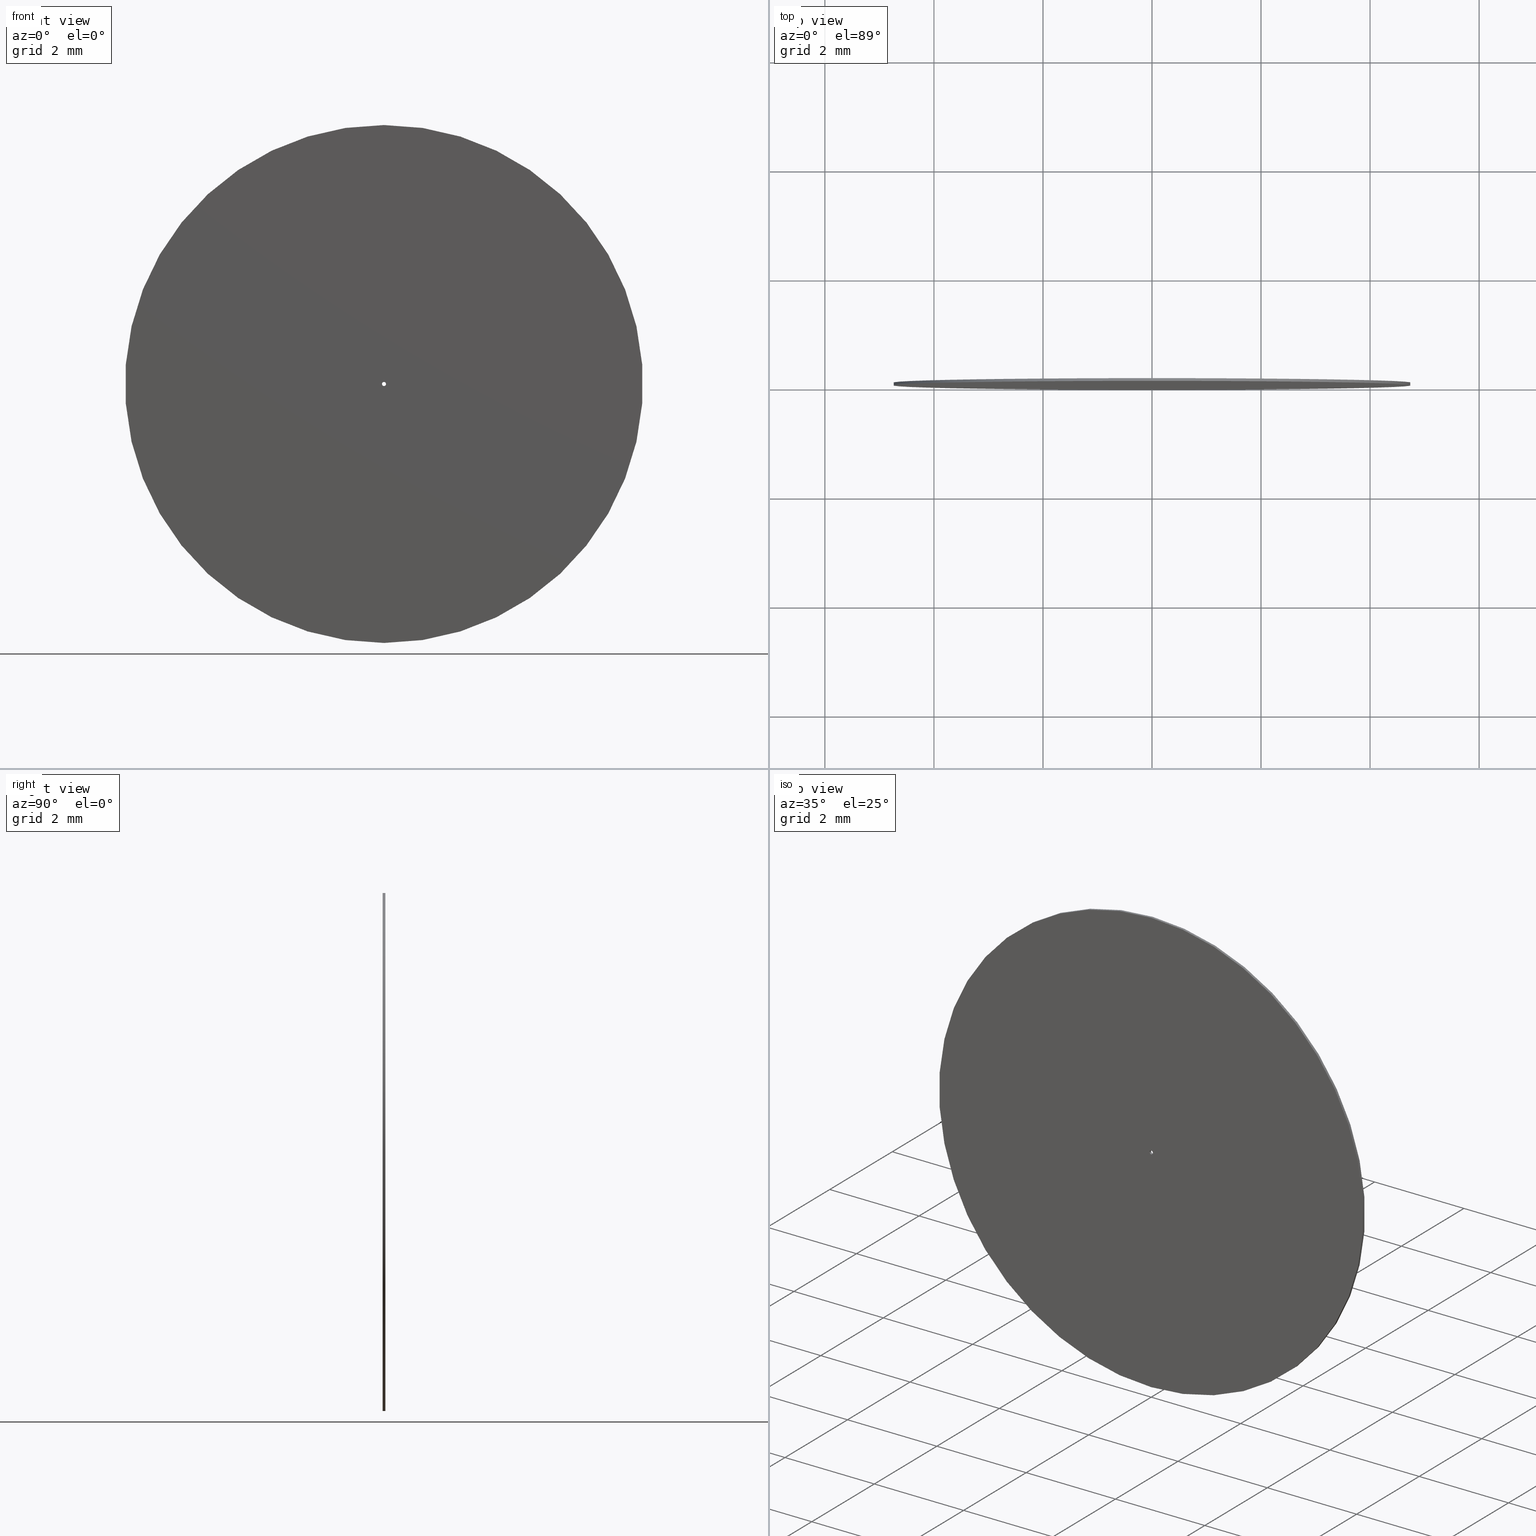
[diagram: canonical four-view strip — front | top / right | iso, engineering-drawing reading convention]
A machine part, canonical four-view strip (front | top / right | iso — engineering-drawing reading convention). The complete STEP part file that produces these views, byte-faithful:
ISO-10303-21;
HEADER;
FILE_DESCRIPTION (( 'STEP AP203' ),
    '1' );
FILE_NAME ('1.5.3.9-ZXO-9.5-75.STEP',
    '2024-05-31T06:06:41',
    ( '' ),
    ( '' ),
    'SwSTEP 2.0',
    'SolidWorks 2021',
    '' );
FILE_SCHEMA (( 'CONFIG_CONTROL_DESIGN' ));
ENDSEC;

DATA;
#1 = VERTEX_POINT ( 'NONE', #80 ) ;
#2 = LOCAL_TIME ( 14, 6, 41.00000000000000000, #148 ) ;
#3 = ORIENTED_EDGE ( 'NONE', *, *, #88, .T. ) ;
#4 = ORIENTED_EDGE ( 'NONE', *, *, #230, .F. ) ;
#5 = CARTESIAN_POINT ( 'NONE',  ( 0.000000000000000000, 0.05000000000000000278, -4.750000000000000000 ) ) ;
#6 = AXIS2_PLACEMENT_3D ( 'NONE', #233, #236, #176 ) ;
#7 = ORIENTED_EDGE ( 'NONE', *, *, #48, .F. ) ;
#8 = CALENDAR_DATE ( 2024, 31, 5 ) ;
#9 = CARTESIAN_POINT ( 'NONE',  ( 0.000000000000000000, 0.000000000000000000, 0.000000000000000000 ) ) ;
#10 = CC_DESIGN_PERSON_AND_ORGANIZATION_ASSIGNMENT ( #249, #149, ( #127 ) ) ;
#11 = APPROVAL_DATE_TIME ( #181, #29 ) ;
#12 = DIRECTION ( 'NONE',  ( 0.000000000000000000, 0.000000000000000000, 1.000000000000000000 ) ) ;
#13 = CIRCLE ( 'NONE', #45, 4.750000000000000000 ) ;
#14 = CARTESIAN_POINT ( 'NONE',  ( 0.000000000000000000, 0.05000000000000000278, 0.000000000000000000 ) ) ;
#15 = LINE ( 'NONE', #67, #18 ) ;
#16 = AXIS2_PLACEMENT_3D ( 'NONE', #199, #24, #19 ) ;
#17 = APPROVAL_DATE_TIME ( #93, #194 ) ;
#18 = VECTOR ( 'NONE', #205, 1000.000000000000000 ) ;
#19 = DIRECTION ( 'NONE',  ( 0.000000000000000000, 0.000000000000000000, -1.000000000000000000 ) ) ;
#20 = VERTEX_POINT ( 'NONE', #99 ) ;
#21 = LOCAL_TIME ( 14, 6, 41.00000000000000000, #231 ) ;
#22 = ORIENTED_EDGE ( 'NONE', *, *, #88, .F. ) ;
#23 = LINE ( 'NONE', #5, #31 ) ;
#24 = DIRECTION ( 'NONE',  ( -0.000000000000000000, -1.000000000000000000, -0.000000000000000000 ) ) ;
#25 = CIRCLE ( 'NONE', #241, 4.750000000000000000 ) ;
#26 = CARTESIAN_POINT ( 'NONE',  ( 0.000000000000000000, 0.05000000000000000278, 0.000000000000000000 ) ) ;
#27 =( NAMED_UNIT ( * ) PLANE_ANGLE_UNIT ( ) SI_UNIT ( $, .RADIAN. ) );
#28 = APPLICATION_PROTOCOL_DEFINITION ( 'international standard', 'config_control_design', 1994, #229 ) ;
#29 = APPROVAL ( #49, 'δָ��' ) ;
#30 = DIRECTION ( 'NONE',  ( -0.000000000000000000, -1.000000000000000000, -0.000000000000000000 ) ) ;
#31 = VECTOR ( 'NONE', #113, 1000.000000000000000 ) ;
#32 = PRODUCT_DEFINITION_FORMATION_WITH_SPECIFIED_SOURCE ( '�κ�', '', #170, .NOT_KNOWN. ) ;
#33 = CC_DESIGN_DATE_AND_TIME_ASSIGNMENT ( #225, #206, ( #127 ) ) ;
#34 = PERSON_AND_ORGANIZATION ( #71, #73 ) ;
#35 = UNCERTAINTY_MEASURE_WITH_UNIT (LENGTH_MEASURE( 1.000000000000000082E-05 ), #160, 'distance_accuracy_value', 'NONE');
#36 = COORDINATED_UNIVERSAL_TIME_OFFSET ( 8, 0, .AHEAD. ) ;
#37 = COORDINATED_UNIVERSAL_TIME_OFFSET ( 8, 0, .AHEAD. ) ;
#38 = AXIS2_PLACEMENT_3D ( 'NONE', #139, #83, #123 ) ;
#39 = ORIENTED_EDGE ( 'NONE', *, *, #175, .F. ) ;
#40 = CARTESIAN_POINT ( 'NONE',  ( 5.817072295949927426E-16, 0.05000000000000000278, 4.750000000000000000 ) ) ;
#41 = CARTESIAN_POINT ( 'NONE',  ( 0.000000000000000000, 0.000000000000000000, 0.000000000000000000 ) ) ;
#42 = ORIENTED_EDGE ( 'NONE', *, *, #53, .T. ) ;
#43 = ORIENTED_EDGE ( 'NONE', *, *, #103, .T. ) ;
#44 = DIRECTION ( 'NONE',  ( -0.000000000000000000, -1.000000000000000000, -0.000000000000000000 ) ) ;
#45 = AXIS2_PLACEMENT_3D ( 'NONE', #142, #202, #201 ) ;
#46 = DIRECTION ( 'NONE',  ( 0.000000000000000000, 1.000000000000000000, 0.000000000000000000 ) ) ;
#47 = CARTESIAN_POINT ( 'NONE',  ( 0.000000000000000000, 0.05000000000000000278, 0.000000000000000000 ) ) ;
#48 = EDGE_CURVE ( 'NONE', #20, #212, #23, .T. ) ;
#49 = APPROVAL_STATUS ( 'not_yet_approved' ) ;
#50 = FACE_BOUND ( 'NONE', #247, .T. ) ;
#51 = PERSON_AND_ORGANIZATION ( #71, #73 ) ;
#52 = PERSON_AND_ORGANIZATION_ROLE ( 'design_owner' ) ;
#53 = EDGE_CURVE ( 'NONE', #78, #117, #141, .T. ) ;
#54 = CC_DESIGN_APPROVAL ( #29, ( #127 ) ) ;
#55 = DATE_AND_TIME ( #209, #2 ) ;
#56 = ORIENTED_EDGE ( 'NONE', *, *, #103, .F. ) ;
#57 = CIRCLE ( 'NONE', #77, 0.03749999999999999861 ) ;
#58 = ORIENTED_EDGE ( 'NONE', *, *, #245, .T. ) ;
#59 = DIRECTION ( 'NONE',  ( 0.000000000000000000, 0.000000000000000000, -1.000000000000000000 ) ) ;
#60 = CYLINDRICAL_SURFACE ( 'NONE', #16, 0.03749999999999999861 ) ;
#61 = AXIS2_PLACEMENT_3D ( 'NONE', #219, #121, #182 ) ;
#62 = CARTESIAN_POINT ( 'NONE',  ( 0.000000000000000000, 0.05000000000000000278, -0.03749999999999999861 ) ) ;
#63 = MANIFOLD_SOLID_BREP ( '͹̨-����1', #174 ) ;
#64 = DIRECTION ( 'NONE',  ( 0.000000000000000000, 1.000000000000000000, 0.000000000000000000 ) ) ;
#65 = LOCAL_TIME ( 14, 6, 41.00000000000000000, #37 ) ;
#66 = CARTESIAN_POINT ( 'NONE',  ( 0.000000000000000000, 0.000000000000000000, -4.750000000000000000 ) ) ;
#67 = CARTESIAN_POINT ( 'NONE',  ( 4.592425496802573602E-18, 0.05000000000000000278, 0.03749999999999999861 ) ) ;
#68 = APPROVAL_ROLE ( '' ) ;
#69 = CALENDAR_DATE ( 2024, 31, 5 ) ;
#70 = AXIS2_PLACEMENT_3D ( 'NONE', #223, #44, #244 ) ;
#71 = PERSON ( 'δָ��', 'δָ��', 'δָ��', ('δָ��'), ('δָ��'), ('δָ��') ) ;
#72 = PERSON_AND_ORGANIZATION ( #71, #73 ) ;
#73 = ORGANIZATION ( 'δָ��', 'δָ��', '' ) ;
#74 = CALENDAR_DATE ( 2024, 31, 5 ) ;
#75 = EDGE_CURVE ( 'NONE', #100, #91, #214, .T. ) ;
#76 = EDGE_LOOP ( 'NONE', ( #128, #58 ) ) ;
#77 = AXIS2_PLACEMENT_3D ( 'NONE', #120, #86, #224 ) ;
#78 = VERTEX_POINT ( 'NONE', #82 ) ;
#79 = DIRECTION ( 'NONE',  ( 0.000000000000000000, 0.000000000000000000, 1.000000000000000000 ) ) ;
#80 = CARTESIAN_POINT ( 'NONE',  ( 4.592425496802573602E-18, 0.05000000000000000278, 0.03749999999999999861 ) ) ;
#81 = VECTOR ( 'NONE', #30, 1000.000000000000000 ) ;
#82 = CARTESIAN_POINT ( 'NONE',  ( 0.000000000000000000, 0.000000000000000000, -0.03749999999999999861 ) ) ;
#83 = DIRECTION ( 'NONE',  ( 0.000000000000000000, 1.000000000000000000, 0.000000000000000000 ) ) ;
#84 = CC_DESIGN_PERSON_AND_ORGANIZATION_ASSIGNMENT ( #146, #246, ( #32 ) ) ;
#85 = DIRECTION ( 'NONE',  ( 0.000000000000000000, -0.000000000000000000, 1.000000000000000000 ) ) ;
#86 = DIRECTION ( 'NONE',  ( 0.000000000000000000, 1.000000000000000000, 0.000000000000000000 ) ) ;
#87 = DIRECTION ( 'NONE',  ( 0.000000000000000000, 1.000000000000000000, 0.000000000000000000 ) ) ;
#88 = EDGE_CURVE ( 'NONE', #94, #1, #102, .T. ) ;
#89 = APPROVAL_ROLE ( '' ) ;
#90 = AXIS2_PLACEMENT_3D ( 'NONE', #158, #161, #85 ) ;
#91 = VERTEX_POINT ( 'NONE', #235 ) ;
#92 = ORIENTED_EDGE ( 'NONE', *, *, #75, .T. ) ;
#93 = DATE_AND_TIME ( #74, #65 ) ;
#94 = VERTEX_POINT ( 'NONE', #62 ) ;
#95 = FACE_OUTER_BOUND ( 'NONE', #173, .T. ) ;
#96 = ADVANCED_FACE ( 'NONE', ( #112 ), #132, .T. ) ;
#97 = DIRECTION ( 'NONE',  ( 0.000000000000000000, 1.000000000000000000, 0.000000000000000000 ) ) ;
#98 = LOCAL_TIME ( 14, 6, 41.00000000000000000, #36 ) ;
#99 = CARTESIAN_POINT ( 'NONE',  ( 0.000000000000000000, 0.05000000000000000278, -4.750000000000000000 ) ) ;
#100 = VERTEX_POINT ( 'NONE', #138 ) ;
#101 = EDGE_LOOP ( 'NONE', ( #135, #92, #43, #7 ) ) ;
#102 = CIRCLE ( 'NONE', #227, 0.03749999999999999861 ) ;
#103 = EDGE_CURVE ( 'NONE', #91, #212, #25, .T. ) ;
#104 = FACE_OUTER_BOUND ( 'NONE', #76, .T. ) ;
#105 = DIRECTION ( 'NONE',  ( 1.000000000000000000, 0.000000000000000000, 0.000000000000000000 ) ) ;
#106 = DIRECTION ( 'NONE',  ( 0.000000000000000000, -0.000000000000000000, 1.000000000000000000 ) ) ;
#107 = ORIENTED_EDGE ( 'NONE', *, *, #175, .T. ) ;
#108 = APPROVAL_ROLE ( '' ) ;
#109 = AXIS2_PLACEMENT_3D ( 'NONE', #192, #234, #59 ) ;
#110 = DATE_AND_TIME ( #69, #98 ) ;
#111 = PERSON_AND_ORGANIZATION_ROLE ( 'creator' ) ;
#112 = FACE_OUTER_BOUND ( 'NONE', #101, .T. ) ;
#113 = DIRECTION ( 'NONE',  ( -0.000000000000000000, -1.000000000000000000, -0.000000000000000000 ) ) ;
#114 = DIRECTION ( 'NONE',  ( 0.000000000000000000, 1.000000000000000000, 0.000000000000000000 ) ) ;
#115 = ORIENTED_EDGE ( 'NONE', *, *, #53, .F. ) ;
#116 = PRODUCT_DEFINITION ( 'δ֪', '', #32, #188 ) ;
#117 = VERTEX_POINT ( 'NONE', #216 ) ;
#118 = FACE_BOUND ( 'NONE', #136, .T. ) ;
#119 = CC_DESIGN_DATE_AND_TIME_ASSIGNMENT ( #55, #228, ( #116 ) ) ;
#120 = CARTESIAN_POINT ( 'NONE',  ( 0.000000000000000000, 0.000000000000000000, 0.000000000000000000 ) ) ;
#121 = DIRECTION ( 'NONE',  ( -0.000000000000000000, -1.000000000000000000, -0.000000000000000000 ) ) ;
#122 = APPROVAL ( #131, 'δָ��' ) ;
#123 = DIRECTION ( 'NONE',  ( 0.000000000000000000, 0.000000000000000000, 1.000000000000000000 ) ) ;
#124 = PERSON_AND_ORGANIZATION ( #71, #73 ) ;
#125 = PERSON_AND_ORGANIZATION ( #71, #73 ) ;
#126 = APPROVAL_STATUS ( 'not_yet_approved' ) ;
#127 = SECURITY_CLASSIFICATION ( '', '', #211 ) ;
#128 = ORIENTED_EDGE ( 'NONE', *, *, #198, .T. ) ;
#129 = ADVANCED_FACE ( 'NONE', ( #154 ), #60, .F. ) ;
#130 = APPROVAL_DATE_TIME ( #110, #122 ) ;
#131 = APPROVAL_STATUS ( 'not_yet_approved' ) ;
#132 = CYLINDRICAL_SURFACE ( 'NONE', #109, 4.750000000000000000 ) ;
#133 = CC_DESIGN_APPROVAL ( #194, ( #116 ) ) ;
#134 = DIRECTION ( 'NONE',  ( -0.000000000000000000, -1.000000000000000000, -0.000000000000000000 ) ) ;
#135 = ORIENTED_EDGE ( 'NONE', *, *, #245, .F. ) ;
#136 = EDGE_LOOP ( 'NONE', ( #42, #177 ) ) ;
#137 = ADVANCED_FACE ( 'NONE', ( #95, #118 ), #183, .F. ) ;
#138 = CARTESIAN_POINT ( 'NONE',  ( 5.817072295949927426E-16, 0.05000000000000000278, 4.750000000000000000 ) ) ;
#139 = CARTESIAN_POINT ( 'NONE',  ( 0.000000000000000000, 0.000000000000000000, 0.000000000000000000 ) ) ;
#140 = DIRECTION ( 'NONE',  ( 0.000000000000000000, 0.000000000000000000, 1.000000000000000000 ) ) ;
#141 = CIRCLE ( 'NONE', #6, 0.03749999999999999861 ) ;
#142 = CARTESIAN_POINT ( 'NONE',  ( 0.000000000000000000, 0.05000000000000000278, 0.000000000000000000 ) ) ;
#143 =( NAMED_UNIT ( * ) SI_UNIT ( $, .STERADIAN. ) SOLID_ANGLE_UNIT ( ) );
#144 = PRODUCT_DEFINITION_SHAPE ( 'NONE', 'NONE',  #116 ) ;
#145 = CIRCLE ( 'NONE', #38, 4.750000000000000000 ) ;
#146 = PERSON_AND_ORGANIZATION ( #71, #73 ) ;
#147 = ADVANCED_FACE ( 'NONE', ( #104, #50 ), #221, .T. ) ;
#148 = COORDINATED_UNIVERSAL_TIME_OFFSET ( 8, 0, .AHEAD. ) ;
#149 = PERSON_AND_ORGANIZATION_ROLE ( 'classification_officer' ) ;
#150 = CC_DESIGN_PERSON_AND_ORGANIZATION_ASSIGNMENT ( #124, #52, ( #170 ) ) ;
#151 = ORIENTED_EDGE ( 'NONE', *, *, #179, .F. ) ;
#152 = AXIS2_PLACEMENT_3D ( 'NONE', #47, #46, #106 ) ;
#153 = DIRECTION ( 'NONE',  ( 0.000000000000000000, 0.000000000000000000, 1.000000000000000000 ) ) ;
#154 = FACE_OUTER_BOUND ( 'NONE', #155, .T. ) ;
#155 = EDGE_LOOP ( 'NONE', ( #157, #171, #107, #4 ) ) ;
#156 = CC_DESIGN_SECURITY_CLASSIFICATION ( #127, ( #32 ) ) ;
#157 = ORIENTED_EDGE ( 'NONE', *, *, #169, .F. ) ;
#158 = CARTESIAN_POINT ( 'NONE',  ( 0.000000000000000000, 0.000000000000000000, 0.000000000000000000 ) ) ;
#159 = APPROVAL_PERSON_ORGANIZATION ( #51, #29, #68 ) ;
#160 =( LENGTH_UNIT ( ) NAMED_UNIT ( * ) SI_UNIT ( .MILLI., .METRE. ) );
#161 = DIRECTION ( 'NONE',  ( 0.000000000000000000, 1.000000000000000000, 0.000000000000000000 ) ) ;
#162 = EDGE_CURVE ( 'NONE', #212, #91, #145, .T. ) ;
#163 = PERSON_AND_ORGANIZATION ( #71, #73 ) ;
#164 = ORIENTED_EDGE ( 'NONE', *, *, #75, .F. ) ;
#165 = ORIENTED_EDGE ( 'NONE', *, *, #48, .T. ) ;
#166 = APPLICATION_PROTOCOL_DEFINITION ( 'international standard', 'config_control_design', 1994, #243 ) ;
#167 = PERSON_AND_ORGANIZATION_ROLE ( 'creator' ) ;
#168 = AXIS2_PLACEMENT_3D ( 'NONE', #26, #87, #238 ) ;
#169 = EDGE_CURVE ( 'NONE', #1, #117, #15, .T. ) ;
#170 = PRODUCT ( '1.5.3.9-ZXO-9.5-75', '1.5.3.9-ZXO-9.5-75', '', ( #226 ) ) ;
#171 = ORIENTED_EDGE ( 'NONE', *, *, #179, .T. ) ;
#172 = AXIS2_PLACEMENT_3D ( 'NONE', #14, #64, #12 ) ;
#173 = EDGE_LOOP ( 'NONE', ( #193, #56 ) ) ;
#174 = CLOSED_SHELL ( 'NONE', ( #239, #96, #147, #137, #186, #129 ) ) ;
#175 = EDGE_CURVE ( 'NONE', #94, #78, #240, .T. ) ;
#176 = DIRECTION ( 'NONE',  ( 0.000000000000000000, 0.000000000000000000, 1.000000000000000000 ) ) ;
#177 = ORIENTED_EDGE ( 'NONE', *, *, #230, .T. ) ;
#178 = EDGE_LOOP ( 'NONE', ( #3, #197, #115, #39 ) ) ;
#179 = EDGE_CURVE ( 'NONE', #1, #94, #190, .T. ) ;
#180 = CYLINDRICAL_SURFACE ( 'NONE', #61, 4.750000000000000000 ) ;
#181 = DATE_AND_TIME ( #8, #248 ) ;
#182 = DIRECTION ( 'NONE',  ( 0.000000000000000000, 0.000000000000000000, -1.000000000000000000 ) ) ;
#183 = PLANE ( 'NONE',  #90 ) ;
#184 = CARTESIAN_POINT ( 'NONE',  ( 0.000000000000000000, 0.05000000000000000278, -0.03749999999999999861 ) ) ;
#185 = ORIENTED_EDGE ( 'NONE', *, *, #198, .F. ) ;
#186 = ADVANCED_FACE ( 'NONE', ( #242 ), #180, .T. ) ;
#187 =( GEOMETRIC_REPRESENTATION_CONTEXT ( 3 ) GLOBAL_UNCERTAINTY_ASSIGNED_CONTEXT ( ( #35 ) ) GLOBAL_UNIT_ASSIGNED_CONTEXT ( ( #160, #27, #143 ) ) REPRESENTATION_CONTEXT ( 'NONE', 'WORKASPACE' ) );
#188 = DESIGN_CONTEXT ( 'detailed design', #243, 'design' ) ;
#189 = CALENDAR_DATE ( 2024, 31, 5 ) ;
#190 = CIRCLE ( 'NONE', #168, 0.03749999999999999861 ) ;
#191 = CC_DESIGN_PERSON_AND_ORGANIZATION_ASSIGNMENT ( #163, #111, ( #32 ) ) ;
#192 = CARTESIAN_POINT ( 'NONE',  ( 0.000000000000000000, 0.05000000000000000278, 0.000000000000000000 ) ) ;
#193 = ORIENTED_EDGE ( 'NONE', *, *, #162, .F. ) ;
#194 = APPROVAL ( #126, 'δָ��' ) ;
#195 = APPROVAL_PERSON_ORGANIZATION ( #72, #194, #89 ) ;
#196 = EDGE_LOOP ( 'NONE', ( #164, #185, #165, #215 ) ) ;
#197 = ORIENTED_EDGE ( 'NONE', *, *, #169, .T. ) ;
#198 = EDGE_CURVE ( 'NONE', #20, #100, #200, .T. ) ;
#199 = CARTESIAN_POINT ( 'NONE',  ( 0.000000000000000000, 0.05000000000000000278, 0.000000000000000000 ) ) ;
#200 = CIRCLE ( 'NONE', #172, 4.750000000000000000 ) ;
#201 = DIRECTION ( 'NONE',  ( 0.000000000000000000, 0.000000000000000000, 1.000000000000000000 ) ) ;
#202 = DIRECTION ( 'NONE',  ( 0.000000000000000000, 1.000000000000000000, 0.000000000000000000 ) ) ;
#203 = CYLINDRICAL_SURFACE ( 'NONE', #70, 0.03749999999999999861 ) ;
#204 = CC_DESIGN_APPROVAL ( #122, ( #32 ) ) ;
#205 = DIRECTION ( 'NONE',  ( -0.000000000000000000, -1.000000000000000000, -0.000000000000000000 ) ) ;
#206 = DATE_TIME_ROLE ( 'classification_date' ) ;
#207 = CC_DESIGN_PERSON_AND_ORGANIZATION_ASSIGNMENT ( #125, #167, ( #116 ) ) ;
#208 = ADVANCED_BREP_SHAPE_REPRESENTATION ( '1.5.3.9-ZXO-9.5-75', ( #63, #220 ), #187 ) ;
#209 = CALENDAR_DATE ( 2024, 31, 5 ) ;
#210 = APPROVAL_PERSON_ORGANIZATION ( #34, #122, #108 ) ;
#211 = SECURITY_CLASSIFICATION_LEVEL ( 'unclassified' ) ;
#212 = VERTEX_POINT ( 'NONE', #66 ) ;
#213 = CARTESIAN_POINT ( 'NONE',  ( 0.000000000000000000, 0.05000000000000000278, 0.000000000000000000 ) ) ;
#214 = LINE ( 'NONE', #40, #232 ) ;
#215 = ORIENTED_EDGE ( 'NONE', *, *, #162, .T. ) ;
#216 = CARTESIAN_POINT ( 'NONE',  ( 4.592425496802573602E-18, 0.000000000000000000, 0.03749999999999999861 ) ) ;
#217 = FACE_OUTER_BOUND ( 'NONE', #178, .T. ) ;
#218 = COORDINATED_UNIVERSAL_TIME_OFFSET ( 8, 0, .AHEAD. ) ;
#219 = CARTESIAN_POINT ( 'NONE',  ( 0.000000000000000000, 0.05000000000000000278, 0.000000000000000000 ) ) ;
#220 = AXIS2_PLACEMENT_3D ( 'NONE', #9, #140, #105 ) ;
#221 = PLANE ( 'NONE',  #152 ) ;
#222 = SHAPE_DEFINITION_REPRESENTATION ( #144, #208 ) ;
#223 = CARTESIAN_POINT ( 'NONE',  ( 0.000000000000000000, 0.05000000000000000278, 0.000000000000000000 ) ) ;
#224 = DIRECTION ( 'NONE',  ( 0.000000000000000000, 0.000000000000000000, 1.000000000000000000 ) ) ;
#225 = DATE_AND_TIME ( #189, #21 ) ;
#226 = MECHANICAL_CONTEXT ( 'NONE', #229, 'mechanical' ) ;
#227 = AXIS2_PLACEMENT_3D ( 'NONE', #213, #97, #153 ) ;
#228 = DATE_TIME_ROLE ( 'creation_date' ) ;
#229 = APPLICATION_CONTEXT ( 'configuration controlled 3d designs of mechanical parts and assemblies' ) ;
#230 = EDGE_CURVE ( 'NONE', #117, #78, #57, .T. ) ;
#231 = COORDINATED_UNIVERSAL_TIME_OFFSET ( 8, 0, .AHEAD. ) ;
#232 = VECTOR ( 'NONE', #134, 1000.000000000000000 ) ;
#233 = CARTESIAN_POINT ( 'NONE',  ( 0.000000000000000000, 0.000000000000000000, 0.000000000000000000 ) ) ;
#234 = DIRECTION ( 'NONE',  ( -0.000000000000000000, -1.000000000000000000, -0.000000000000000000 ) ) ;
#235 = CARTESIAN_POINT ( 'NONE',  ( 5.817072295949927426E-16, 0.000000000000000000, 4.750000000000000000 ) ) ;
#236 = DIRECTION ( 'NONE',  ( 0.000000000000000000, 1.000000000000000000, 0.000000000000000000 ) ) ;
#237 = PRODUCT_RELATED_PRODUCT_CATEGORY ( 'detail', '', ( #170 ) ) ;
#238 = DIRECTION ( 'NONE',  ( 0.000000000000000000, 0.000000000000000000, 1.000000000000000000 ) ) ;
#239 = ADVANCED_FACE ( 'NONE', ( #217 ), #203, .F. ) ;
#240 = LINE ( 'NONE', #184, #81 ) ;
#241 = AXIS2_PLACEMENT_3D ( 'NONE', #41, #114, #79 ) ;
#242 = FACE_OUTER_BOUND ( 'NONE', #196, .T. ) ;
#243 = APPLICATION_CONTEXT ( 'configuration controlled 3d designs of mechanical parts and assemblies' ) ;
#244 = DIRECTION ( 'NONE',  ( 0.000000000000000000, 0.000000000000000000, -1.000000000000000000 ) ) ;
#245 = EDGE_CURVE ( 'NONE', #100, #20, #13, .T. ) ;
#246 = PERSON_AND_ORGANIZATION_ROLE ( 'design_supplier' ) ;
#247 = EDGE_LOOP ( 'NONE', ( #22, #151 ) ) ;
#248 = LOCAL_TIME ( 14, 6, 41.00000000000000000, #218 ) ;
#249 = PERSON_AND_ORGANIZATION ( #71, #73 ) ;
ENDSEC;
END-ISO-10303-21;
